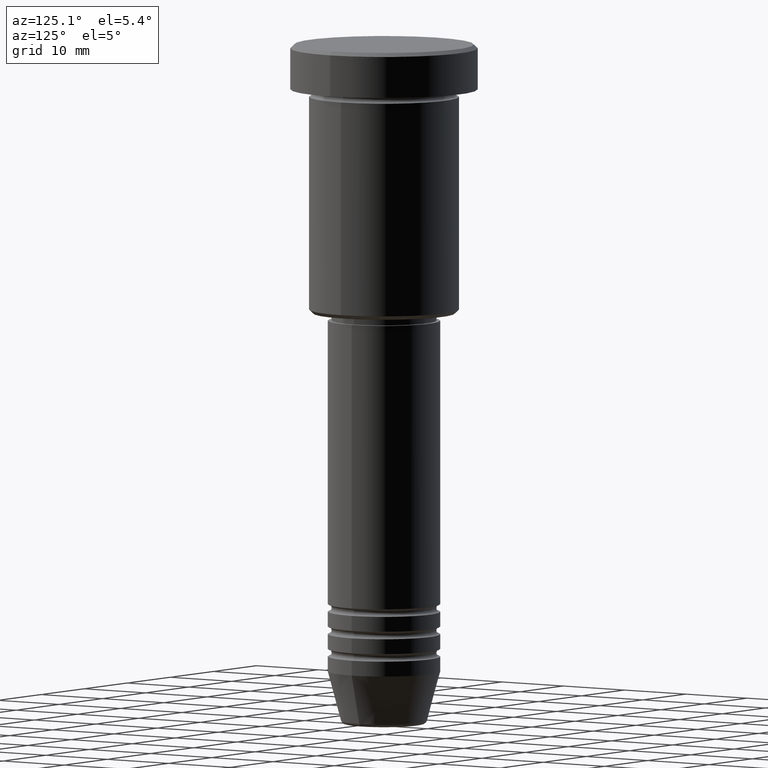
[diagram: clean part render]
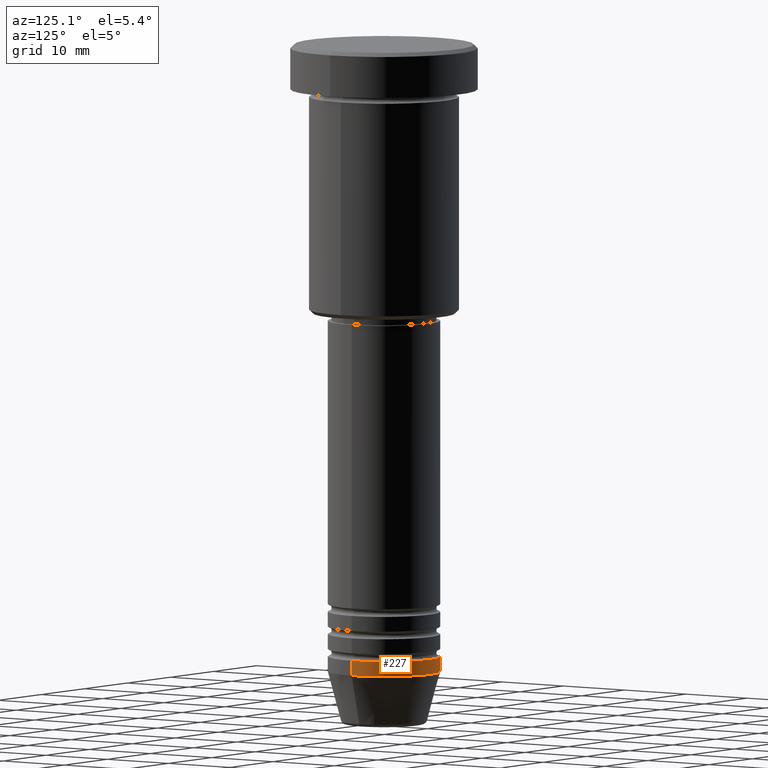
[diagram: same view with one face highlighted and labeled with its STEP entity id]
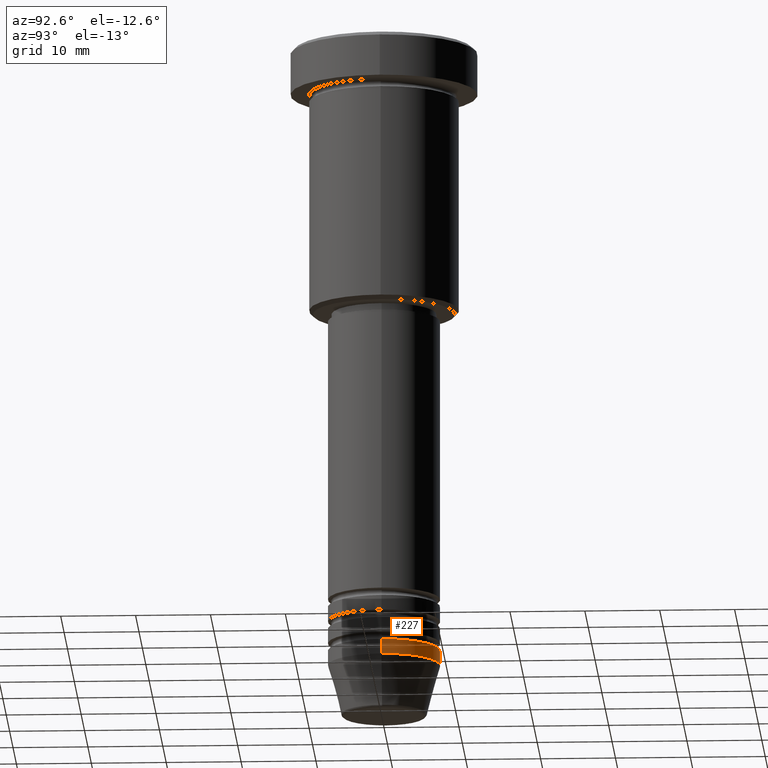
[diagram: same view with one face highlighted and labeled with its STEP entity id]
A machine part, auxiliary view. The second image highlights one B-rep face of the part: STEP entity #227.
A second angle (auxiliary view) of the same face is appended — the face is thin or edge-on in the first view.
In plain terms, the highlighted cylindrical surface (partial cylindrical patch) has radius 7.5 mm, axis along (-0, -0, 1).
Its self-contained STEP definition (entity closure, byte-faithful):
#1 = CARTESIAN_POINT ( 'NONE',  ( -7.500000000000000000, 9.184850993605147944E-16, 0.000000000000000000 ) ) ;
#17 = CIRCLE ( 'NONE', #438, 7.500000000000000000 ) ;
#45 = LINE ( 'NONE', #979, #661 ) ;
#51 = AXIS2_PLACEMENT_3D ( 'NONE', #722, #202, #563 ) ;
#202 = DIRECTION ( 'NONE',  ( -0.000000000000000000, -0.000000000000000000, 1.000000000000000000 ) ) ;
#219 = CARTESIAN_POINT ( 'NONE',  ( -7.500000000000000000, 9.184850993605147944E-16, -81.99999999999998579 ) ) ;
#227 = ADVANCED_FACE ( 'NONE', ( #814 ), #1019, .T. ) ;
#233 = DIRECTION ( 'NONE',  ( 1.000000000000000000, 0.000000000000000000, 0.000000000000000000 ) ) ;
#254 = ORIENTED_EDGE ( 'NONE', *, *, #1171, .T. ) ;
#259 = CARTESIAN_POINT ( 'NONE',  ( -7.500000000000000000, 9.184850993605147944E-16, -83.99999999999998579 ) ) ;
#260 = DIRECTION ( 'NONE',  ( -0.000000000000000000, -0.000000000000000000, 1.000000000000000000 ) ) ;
#316 = DIRECTION ( 'NONE',  ( 1.000000000000000000, 0.000000000000000000, 0.000000000000000000 ) ) ;
#336 = DIRECTION ( 'NONE',  ( -0.000000000000000000, -0.000000000000000000, 1.000000000000000000 ) ) ;
#341 = DIRECTION ( 'NONE',  ( -0.000000000000000000, -0.000000000000000000, 1.000000000000000000 ) ) ;
#357 = LINE ( 'NONE', #1, #881 ) ;
#438 = AXIS2_PLACEMENT_3D ( 'NONE', #518, #341, #233 ) ;
#445 = EDGE_LOOP ( 'NONE', ( #254, #719, #1016, #885 ) ) ;
#480 = CARTESIAN_POINT ( 'NONE',  ( 0.000000000000000000, 0.000000000000000000, -83.99999999999998579 ) ) ;
#518 = CARTESIAN_POINT ( 'NONE',  ( 0.000000000000000000, 0.000000000000000000, -81.99999999999998579 ) ) ;
#523 = EDGE_CURVE ( 'NONE', #577, #991, #17, .T. ) ;
#539 = EDGE_CURVE ( 'NONE', #1086, #577, #45, .T. ) ;
#563 = DIRECTION ( 'NONE',  ( 1.000000000000000000, 0.000000000000000000, 0.000000000000000000 ) ) ;
#577 = VERTEX_POINT ( 'NONE', #634 ) ;
#614 = EDGE_CURVE ( 'NONE', #847, #991, #357, .T. ) ;
#634 = CARTESIAN_POINT ( 'NONE',  ( 7.500000000000000000, 0.000000000000000000, -81.99999999999998579 ) ) ;
#661 = VECTOR ( 'NONE', #336, 1000.000000000000000 ) ;
#673 = DIRECTION ( 'NONE',  ( -0.000000000000000000, -0.000000000000000000, 1.000000000000000000 ) ) ;
#719 = ORIENTED_EDGE ( 'NONE', *, *, #614, .T. ) ;
#722 = CARTESIAN_POINT ( 'NONE',  ( 0.000000000000000000, 0.000000000000000000, 0.000000000000000000 ) ) ;
#814 = FACE_OUTER_BOUND ( 'NONE', #445, .T. ) ;
#847 = VERTEX_POINT ( 'NONE', #259 ) ;
#881 = VECTOR ( 'NONE', #260, 1000.000000000000000 ) ;
#885 = ORIENTED_EDGE ( 'NONE', *, *, #539, .F. ) ;
#979 = CARTESIAN_POINT ( 'NONE',  ( 7.500000000000000000, 0.000000000000000000, 0.000000000000000000 ) ) ;
#991 = VERTEX_POINT ( 'NONE', #219 ) ;
#1016 = ORIENTED_EDGE ( 'NONE', *, *, #523, .F. ) ;
#1019 = CYLINDRICAL_SURFACE ( 'NONE', #51, 7.500000000000000000 ) ;
#1051 = CIRCLE ( 'NONE', #1144, 7.500000000000000000 ) ;
#1086 = VERTEX_POINT ( 'NONE', #1111 ) ;
#1111 = CARTESIAN_POINT ( 'NONE',  ( 7.500000000000000000, 0.000000000000000000, -83.99999999999998579 ) ) ;
#1144 = AXIS2_PLACEMENT_3D ( 'NONE', #480, #673, #316 ) ;
#1171 = EDGE_CURVE ( 'NONE', #1086, #847, #1051, .T. ) ;